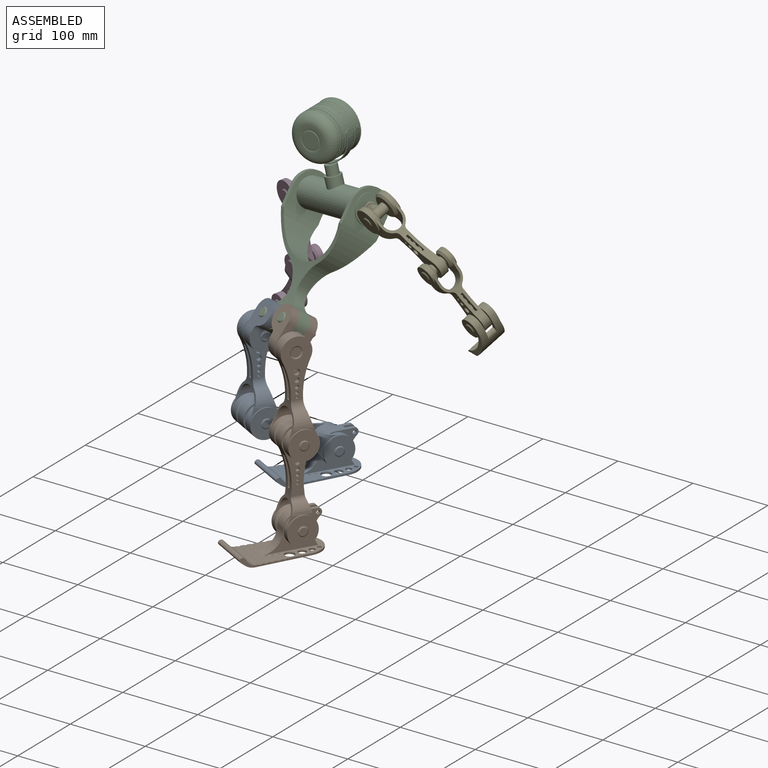
[diagram: assembled view]
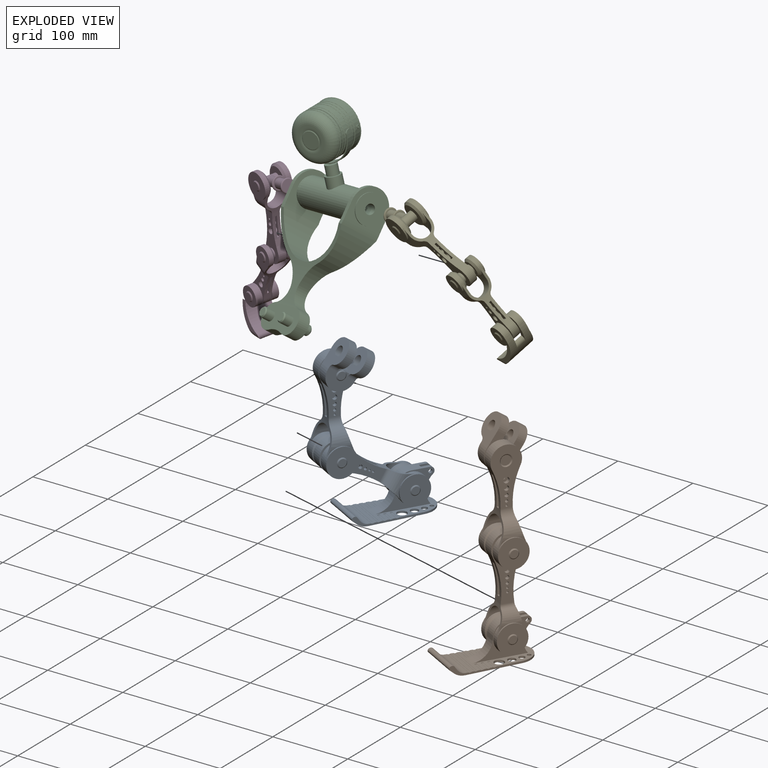
[diagram: exploded view]
GUIDED TOUR — MATED ASSEMBLY WITH SUBASSEMBLIES (Onshape document a24589fef76addebc5a67598, AutoMate assembly a24589fef76addebc5a67598_91730d0f8d46264968ac0a37_3807024f5753641d3b96459d_default)

This assembly has 21 component occurrences arranged in 5 top-level units: 0 individual components plus 5 subassemblies (S0, S1, S2, S3, S4). The tour has two levels: first the top level, where each subassembly is treated as one rigid unit; then each subassembly is toured internally in its own section (nesting deeper than one subassembly level is flattened into its subassembly's section).

Components are labeled P0..P20 across the whole record; subassembly units are labeled S0..S4. A mate is a constraint between two units; its type names the relative motion it leaves free:
  FASTENED — locks the two components together rigidly (no relative motion),
  REVOLUTE — leaves rotation about the listed axis free (a hinge).
Axis/direction vectors are unit vectors and 'through' points are millimeter coordinates, both in the assembly's world frame.

TOP-LEVEL MATES (between units; each subassembly's internal mates are listed in its own section)
  1. REVOLUTE "旋转 4": S4 <-> S2, axis (-0.904, 0.369, -0.215) through (-297.67, 82.02, 170.08) mm
  2. REVOLUTE "旋转 3": S2 <-> S3, axis (-0.904, 0.369, -0.215) through (-413.67, 129.31, 142.50) mm
  3. REVOLUTE "旋转 1": S2 <-> S0, axis (-0.422, -0.698, 0.578) through (-390.06, 10.44, 49.07) mm
  4. REVOLUTE "旋转 2": S2 <-> S1, axis (-0.422, -0.698, 0.578) through (-355.60, -3.60, 57.26) mm

TOP-LEVEL ASSEMBLY ORDER
  1. S2 — the base component [order heuristic]
  2. S0 [order heuristic]
  3. S1 [order heuristic]
  4. S3 [order heuristic]
  5. S4 [order heuristic]
Order-tag legend:
  [order heuristic] — this assembly is geometrically interlocked (no collision-free removal order exists), so components are listed in mate-graph order; insertion feasibility is not verified.

Of the 21 component occurrences, 2 carry the full construction recipe — the FeatureScript program that regenerates the part's solid from scratch; the rest are supplied as boundary geometry only. Each toured unit is shown spotlighted twice — assembled, then exploded with a leader line back to its socket (green = recipe-attached component, orange = geometry-only, blue = subassembly unit; the rest desaturated gray).
NOTE — this tour is split across 3 documents so each fits a 32k-token context. This is document 1: the component sections continue in the remaining 2 documents, each repeating the header above.
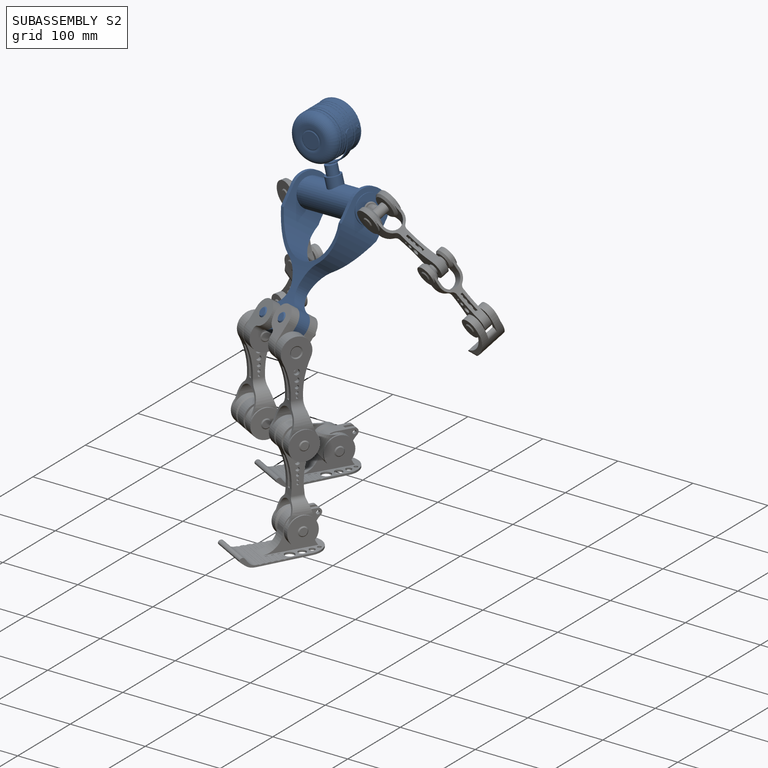
[diagram: subassembly S2 — assembled]
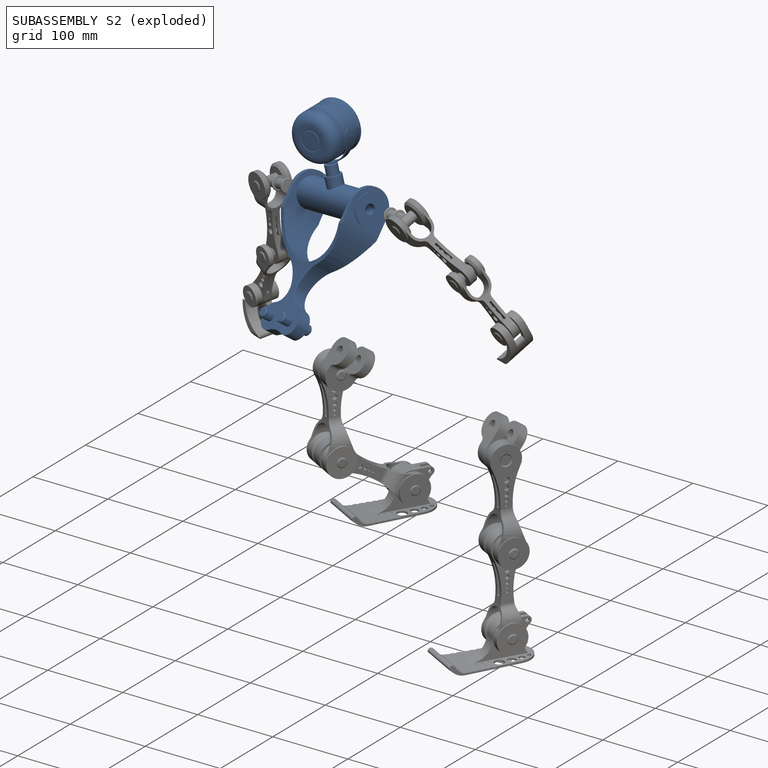
[diagram: subassembly S2 — exploded]
SUBASSEMBLY S2 — 5 components (P5, P11, P13, P16, P18), of which 0 recipe-attached; toured below.
Held by: REVOLUTE mate "旋转 4" to S4; REVOLUTE mate "旋转 3" to S3; REVOLUTE mate "旋转 1" to S0; REVOLUTE mate "旋转 2" to S1.
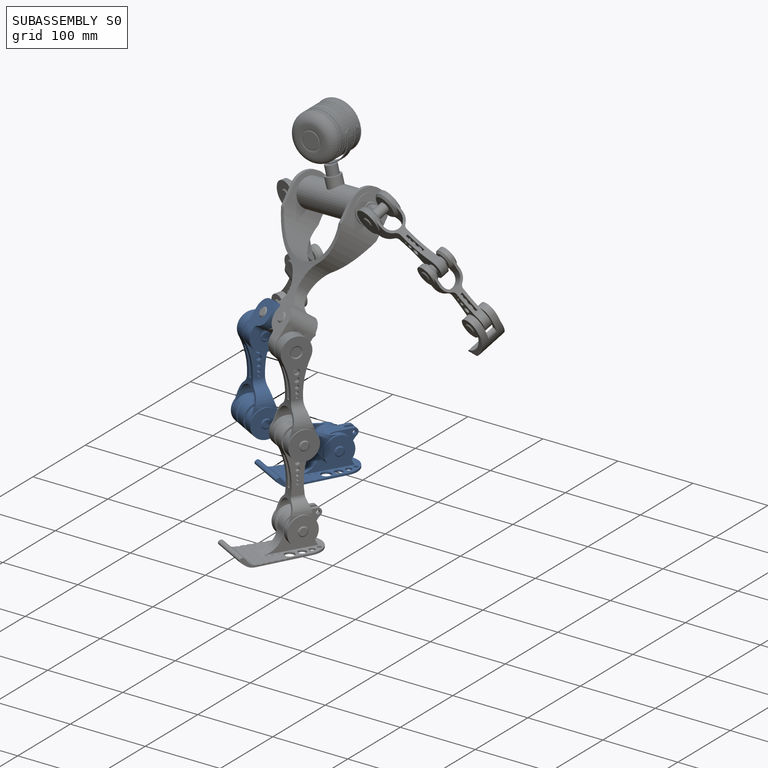
[diagram: subassembly S0 — assembled]
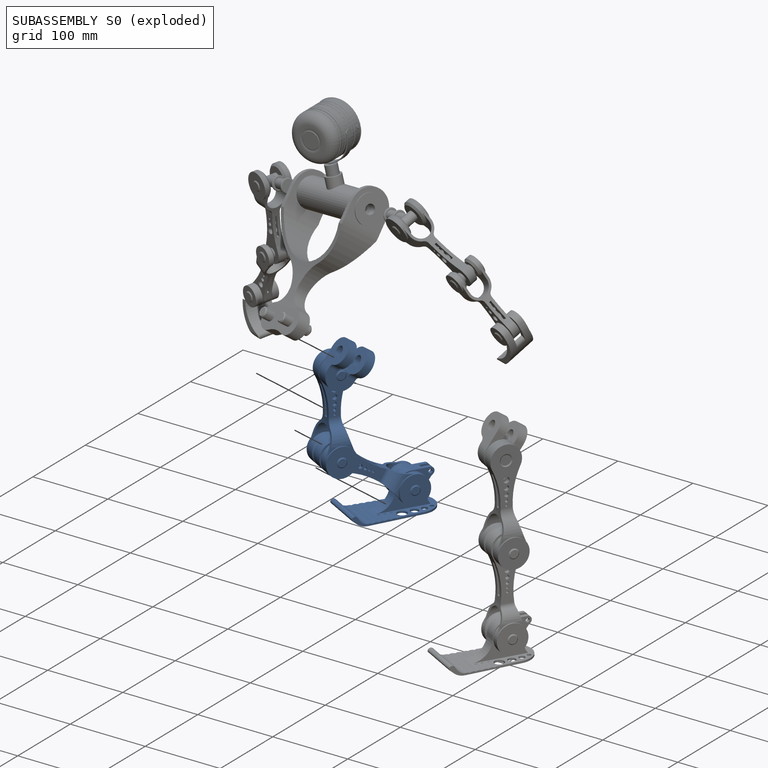
[diagram: subassembly S0 — exploded]
SUBASSEMBLY S0 — 4 components (P0, P1, P3, P9), of which 0 recipe-attached; toured below.
Held by: REVOLUTE mate "旋转 1" to S2.
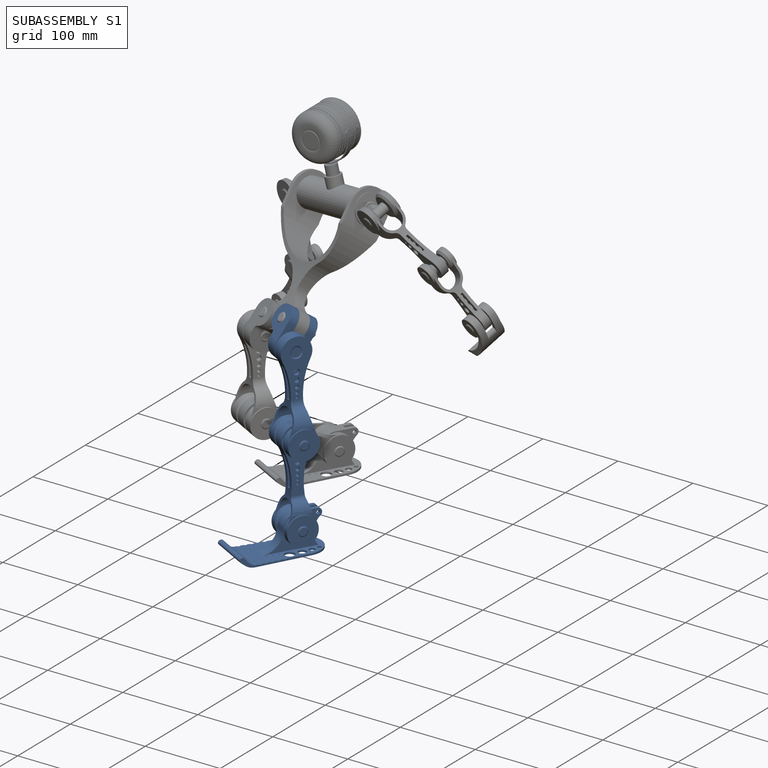
[diagram: subassembly S1 — assembled]
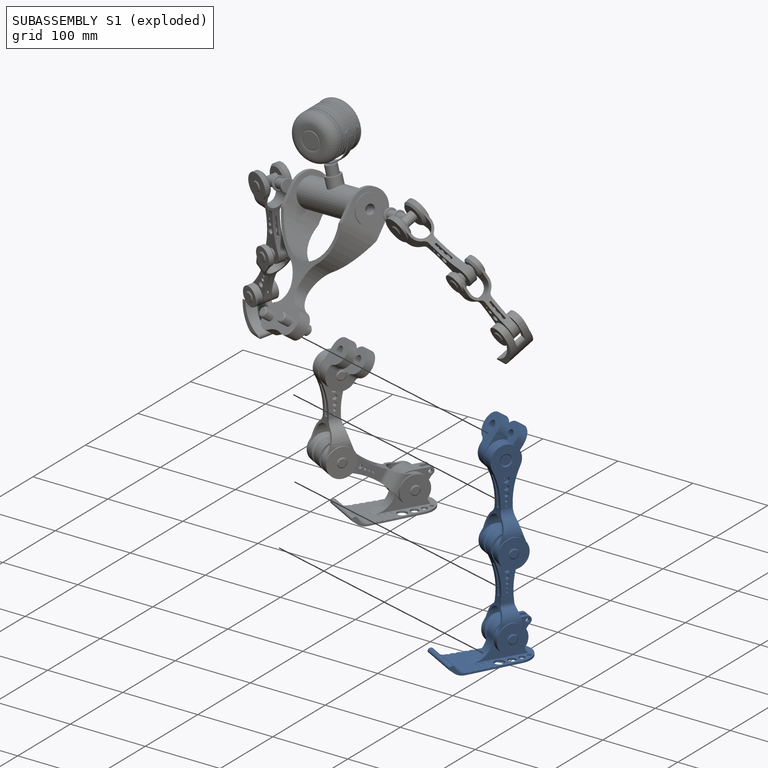
[diagram: subassembly S1 — exploded]
SUBASSEMBLY S1 — 4 components (P2, P4, P17, P20), of which 0 recipe-attached; toured below.
Held by: REVOLUTE mate "旋转 2" to S2.
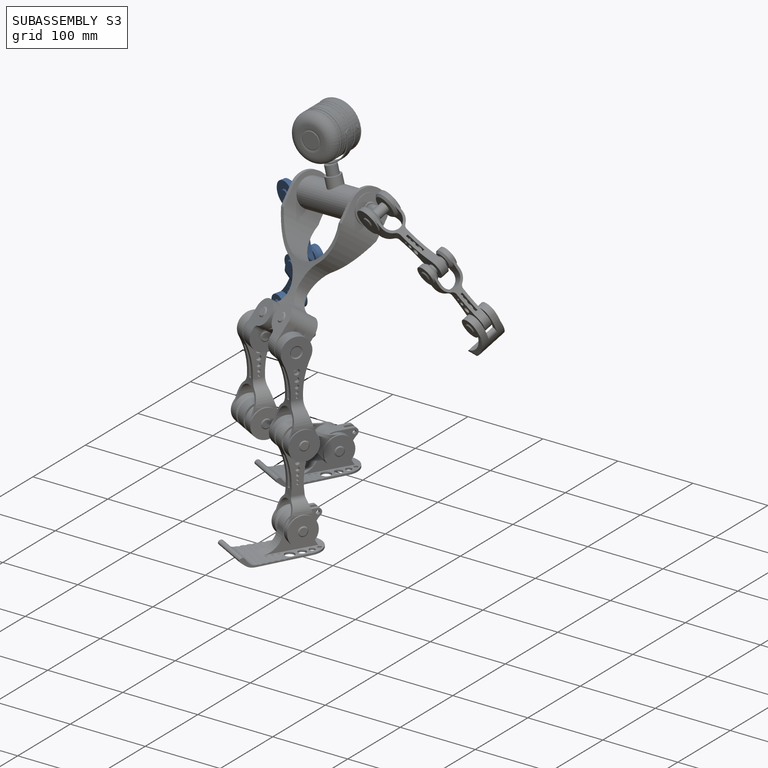
[diagram: subassembly S3 — assembled]
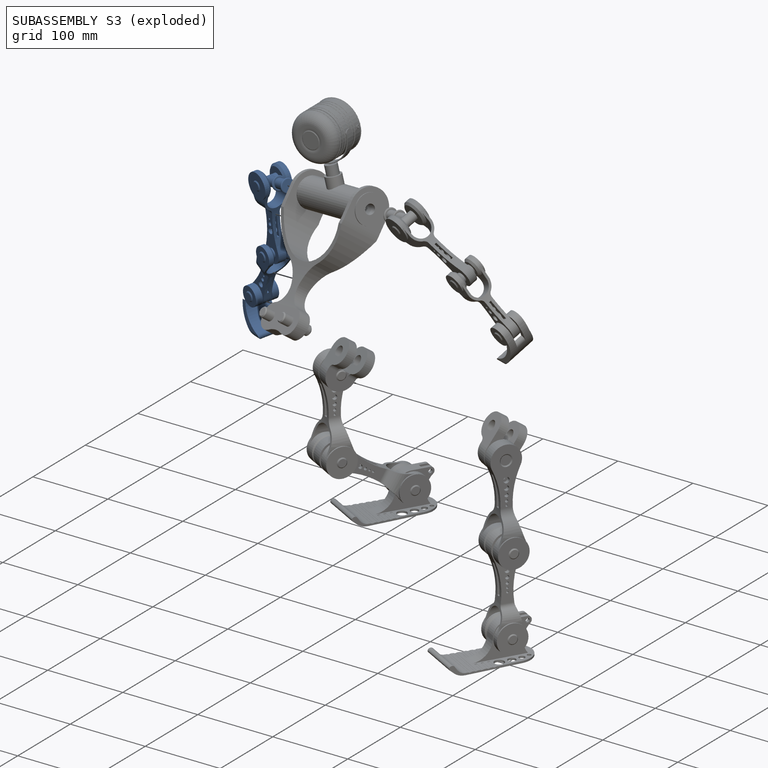
[diagram: subassembly S3 — exploded]
SUBASSEMBLY S3 — 4 components (P6, P7, P14, P15), of which 1 recipe-attached; toured below.
Held by: REVOLUTE mate "旋转 3" to S2.
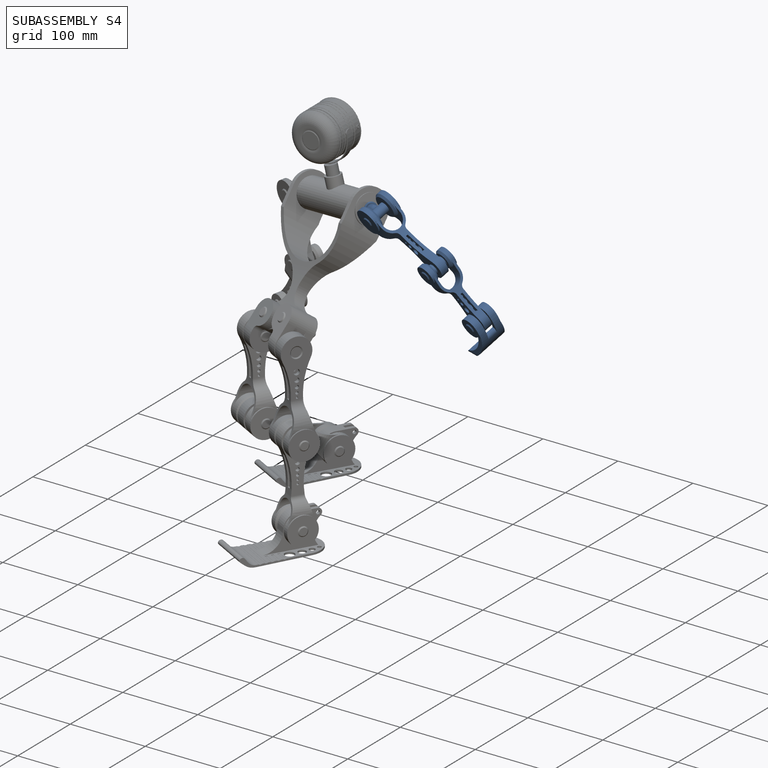
[diagram: subassembly S4 — assembled]
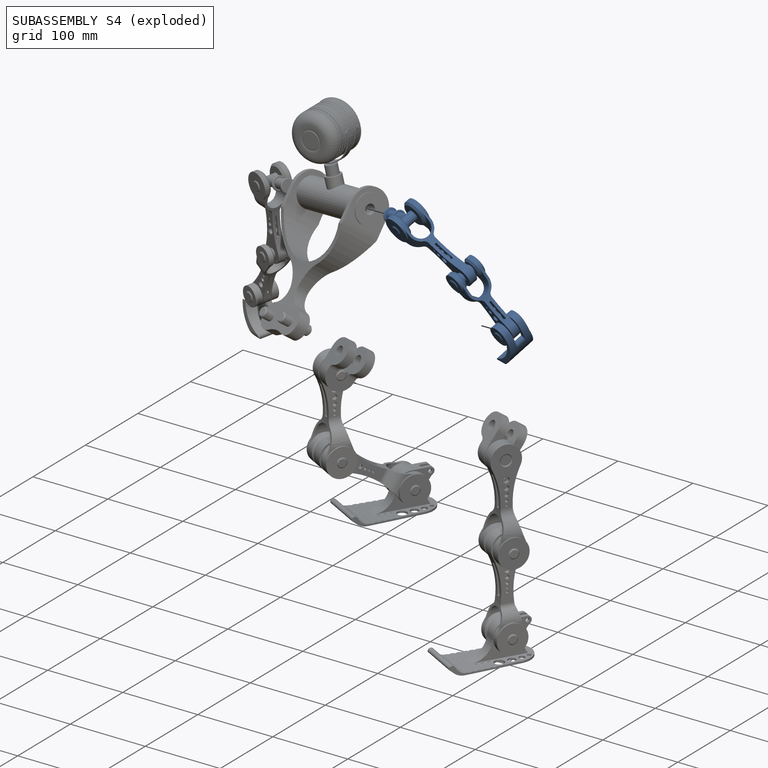
[diagram: subassembly S4 — exploded]
SUBASSEMBLY S4 — 4 components (P8, P10, P12, P19), of which 1 recipe-attached; toured below.
Held by: REVOLUTE mate "旋转 4" to S2.
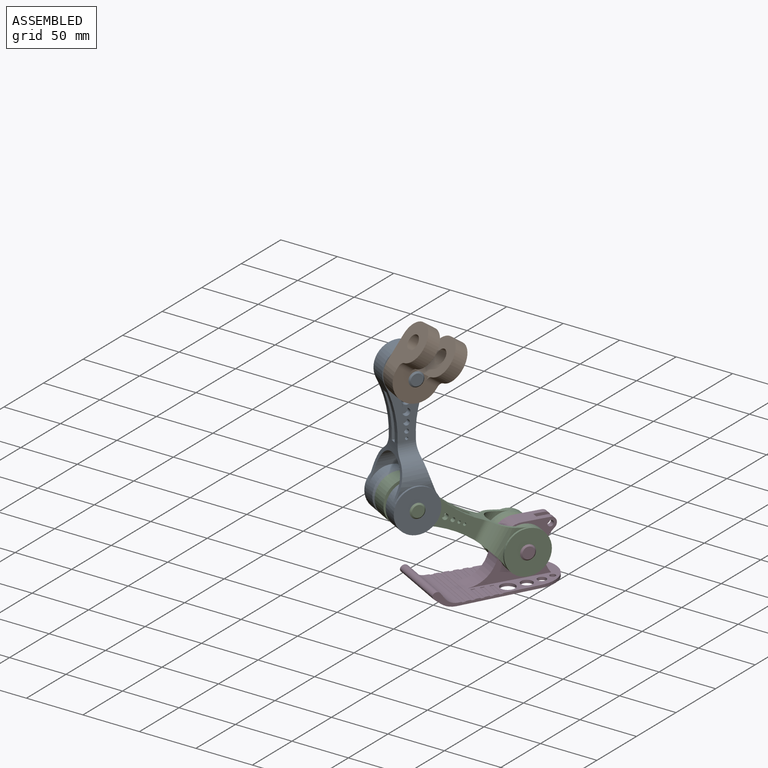
[diagram: subassembly S0 — assembled view]
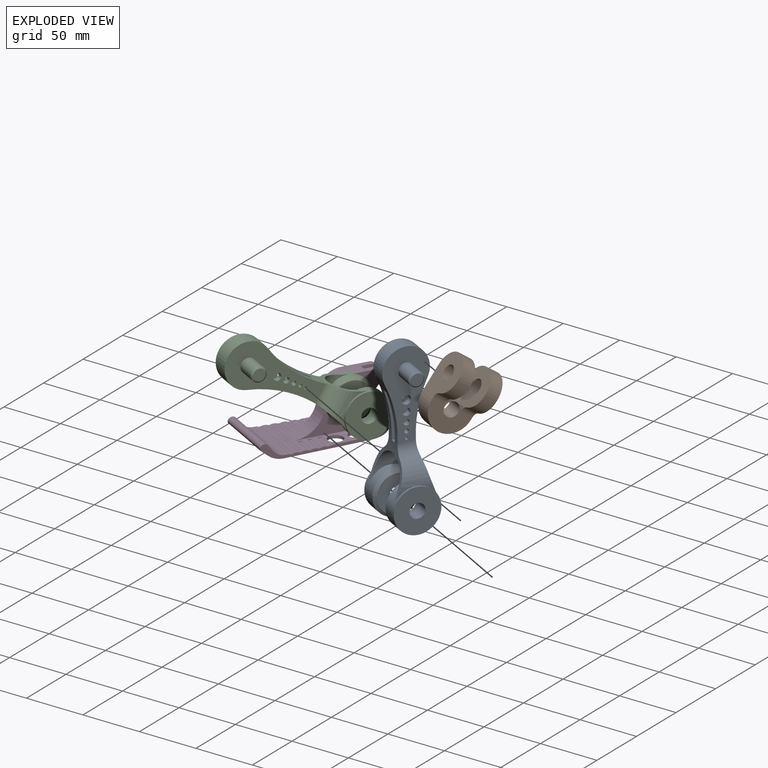
[diagram: subassembly S0 — exploded view]
SUBASSEMBLY S0 TOUR — 4 components, shown here in isolation at its own camera.

INTERNAL MATES
  1. REVOLUTE "旋转 2": P3 <-> P0, axis (0.865, -0.502, 0.025) through (-386.15, 10.53, -84.70) mm
  2. REVOLUTE "旋转 3": P1 <-> P0, axis (0.865, -0.502, 0.025) through (-388.25, 12.08, 19.41) mm
  3. REVOLUTE "旋转 1": P9 <-> P3, axis (0.865, -0.502, 0.025) through (-344.21, 90.29, -137.13) mm
  4. REVOLUTE "旋转 1": P9 <-> P3, axis (0.865, -0.502, 0.025) through (-344.21, 90.29, -137.13) mm
  5. REVOLUTE "旋转 3": P1 <-> P0, axis (0.865, -0.502, 0.025) through (-388.25, 12.08, 19.41) mm
  6. REVOLUTE "旋转 2": P3 <-> P0, axis (0.865, -0.502, 0.025) through (-386.15, 10.53, -84.70) mm

ASSEMBLY ORDER (within the subassembly)
  1. P0 — the base component [order heuristic]
  2. P1 [order heuristic]
  3. P3 [order heuristic]
  4. P9 [order heuristic]
Order-tag legend:
  [order heuristic] — this assembly is geometrically interlocked (no collision-free removal order exists), so components are listed in mate-graph order; insertion feasibility is not verified.
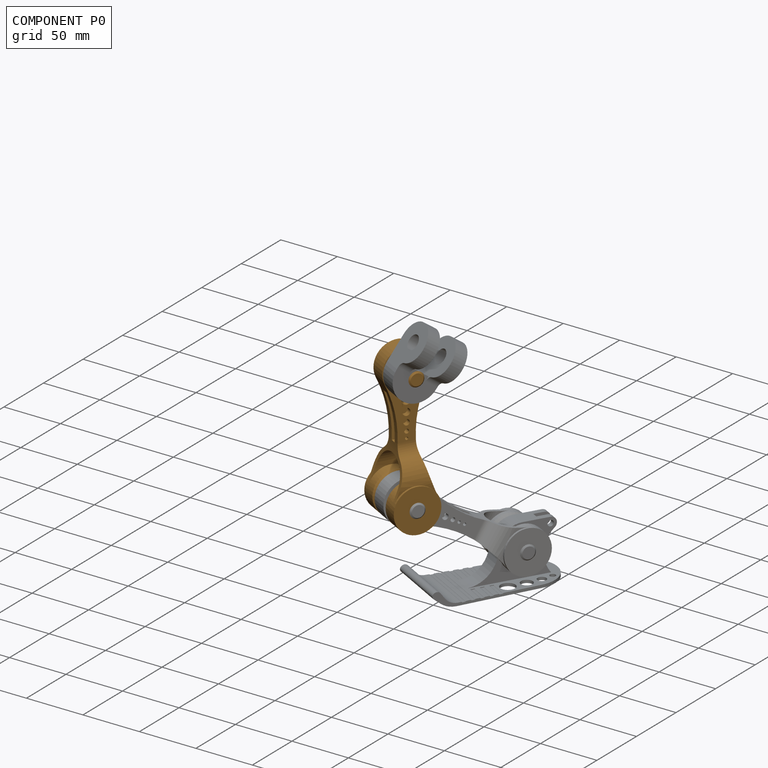
[diagram: component P0 — assembled]
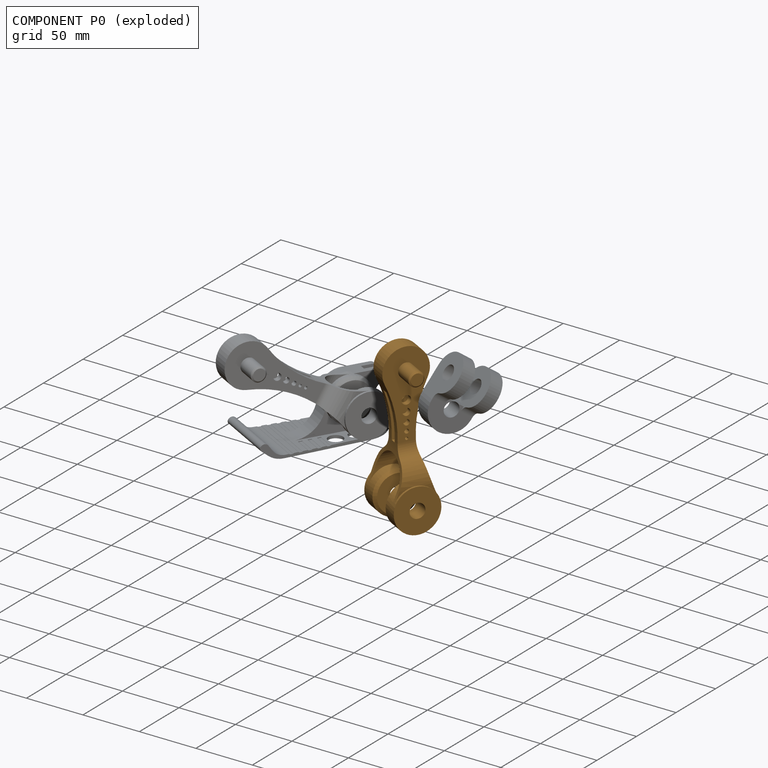
[diagram: component P0 — exploded]
COMPONENT P0 — geometry summary (no construction recipe available for this part):
  bounding box: 142.3 x 52.1 x 38.2 mm
  B-rep topology: 1 solid, 47 faces, 246 edges
  volume: 64594 mm^3 (23% of its bounding box)
  symmetry: mirror-symmetric across its y mid-plane
Held by: REVOLUTE mate "旋转 2" to P3; REVOLUTE mate "旋转 3" to P1; REVOLUTE mate "旋转 3" to P1; REVOLUTE mate "旋转 2" to P3.
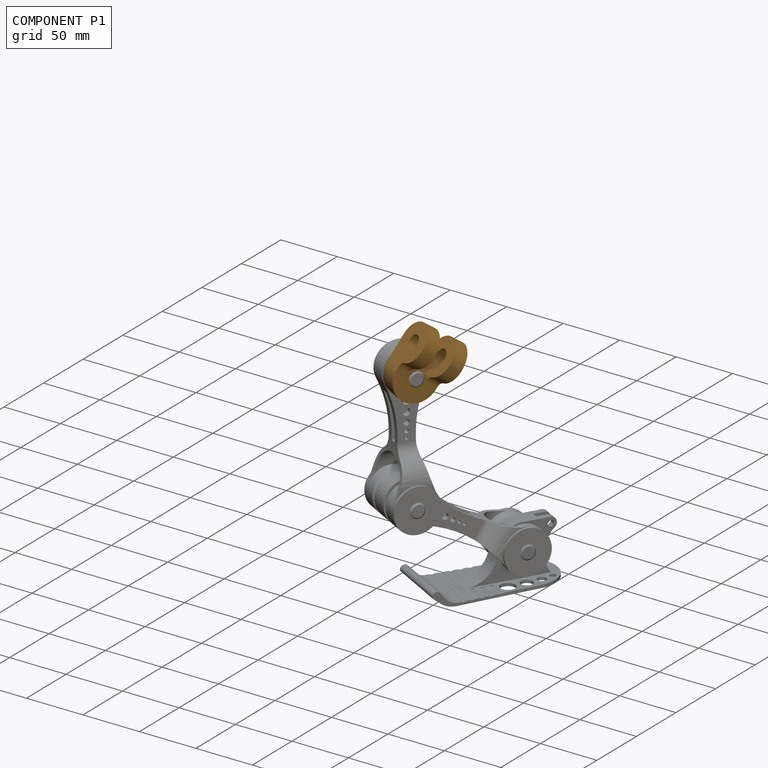
[diagram: component P1 — assembled]
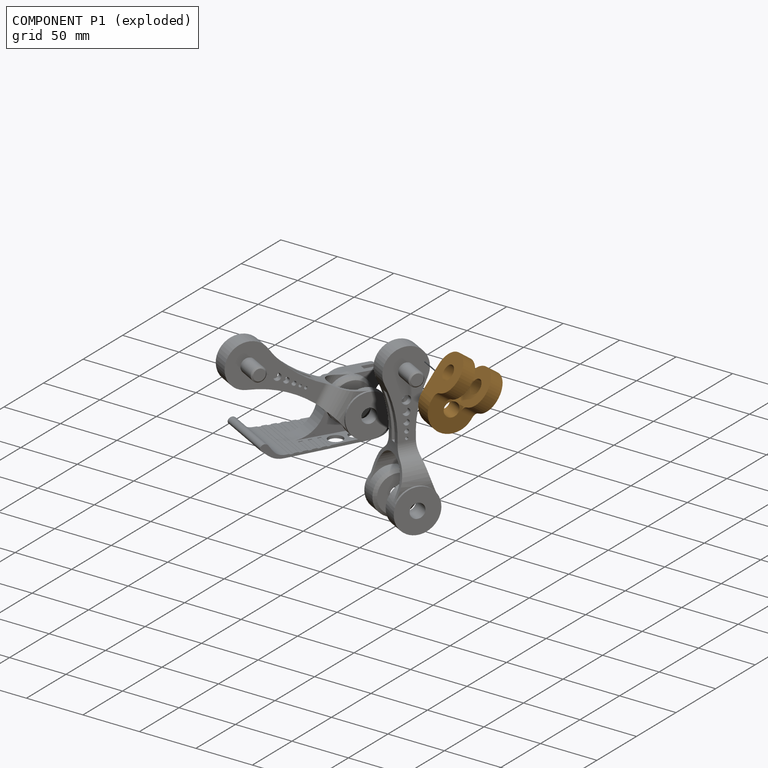
[diagram: component P1 — exploded]
COMPONENT P1 — geometry summary (no construction recipe available for this part):
  bounding box: 58.4 x 38.1 x 33.0 mm
  B-rep topology: 1 solid, 20 faces, 112 edges
  volume: 30275 mm^3 (41% of its bounding box)
  symmetry: mirror-symmetric across its y mid-plane
Held by: REVOLUTE mate "旋转 3" to P0; REVOLUTE mate "旋转 3" to P0.
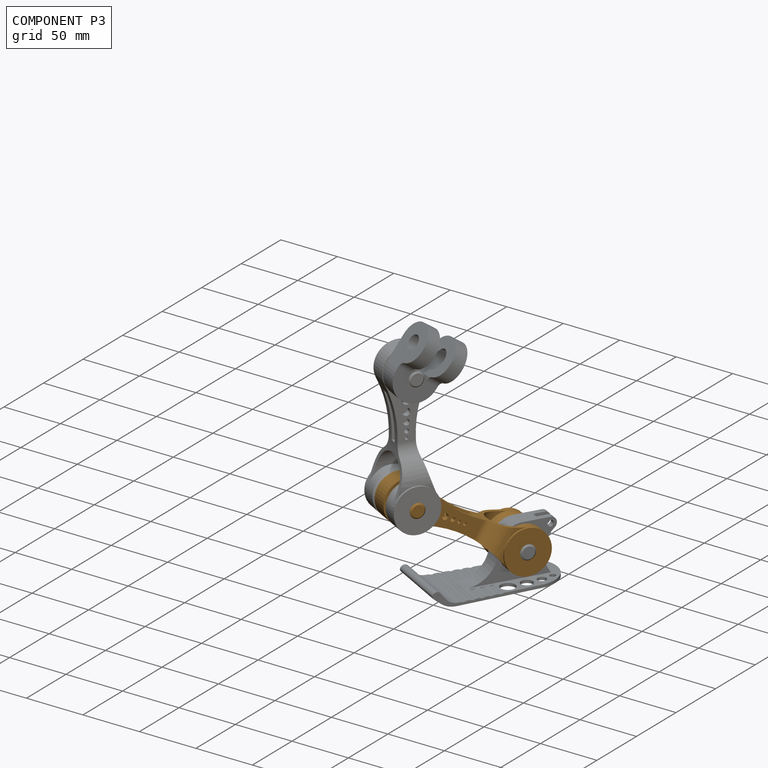
[diagram: component P3 — assembled]
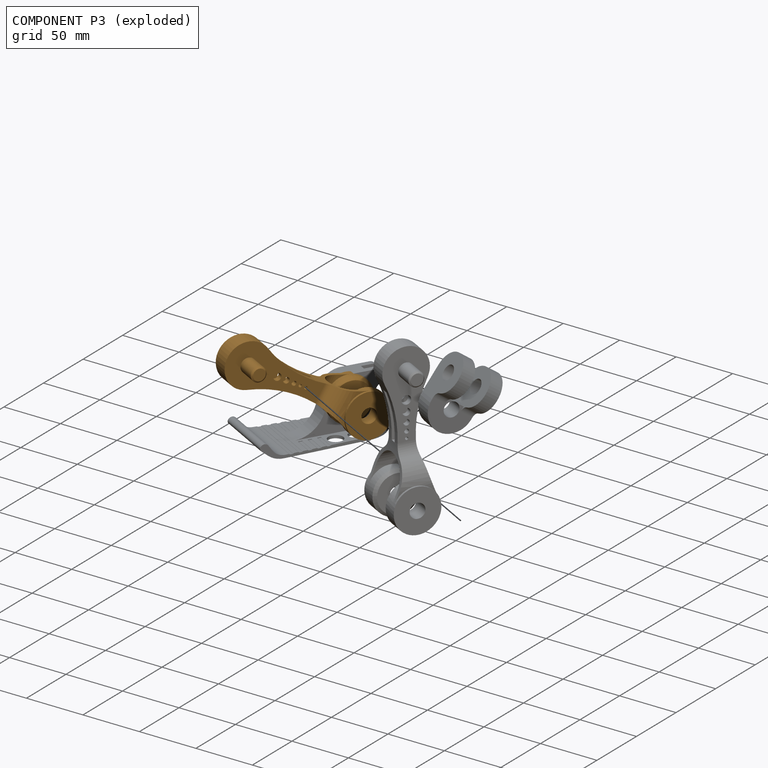
[diagram: component P3 — exploded]
COMPONENT P3 — geometry summary (no construction recipe available for this part):
  bounding box: 142.2 x 53.3 x 38.1 mm
  B-rep topology: 1 solid, 48 faces, 250 edges
  volume: 57555 mm^3 (20% of its bounding box)
  symmetry: 2-fold rotationally symmetric about the z axis; mirror-symmetric across its x mid-plane, y mid-plane
Held by: REVOLUTE mate "旋转 2" to P0; REVOLUTE mate "旋转 1" to P9; REVOLUTE mate "旋转 1" to P9; REVOLUTE mate "旋转 2" to P0.
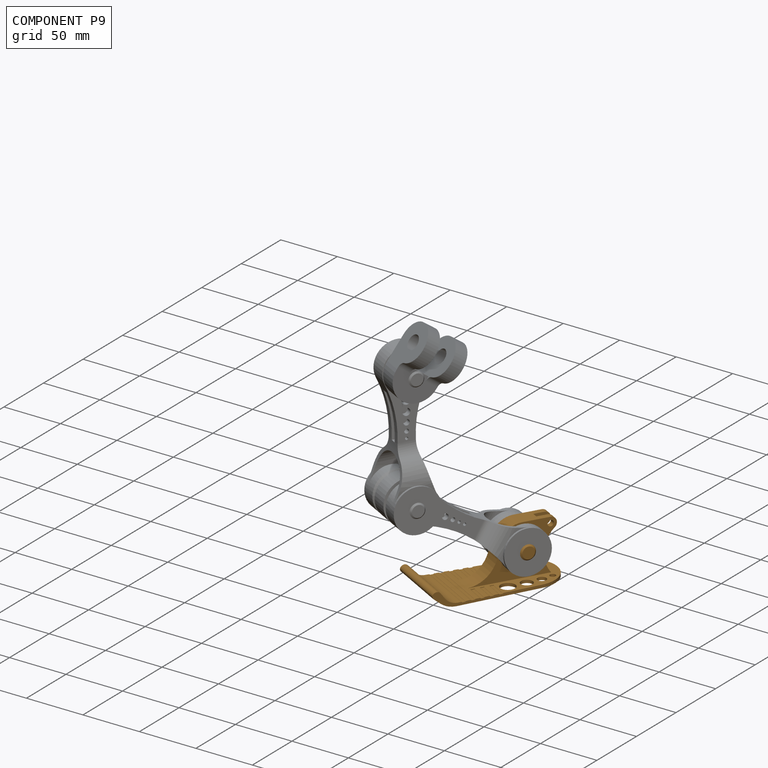
[diagram: component P9 — assembled]
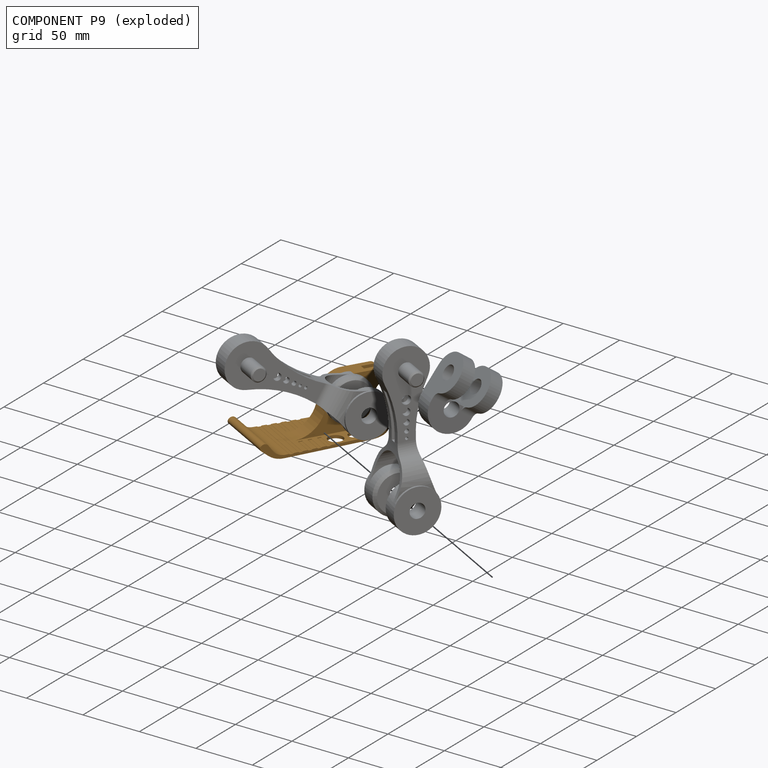
[diagram: component P9 — exploded]
COMPONENT P9 — geometry summary (no construction recipe available for this part):
  bounding box: 113.0 x 55.9 x 47.5 mm
  B-rep topology: 1 solid, 97 faces, 534 edges
  volume: 46412 mm^3 (15% of its bounding box)
  symmetry: mirror-symmetric across its x mid-plane
Held by: REVOLUTE mate "旋转 1" to P3; REVOLUTE mate "旋转 1" to P3.
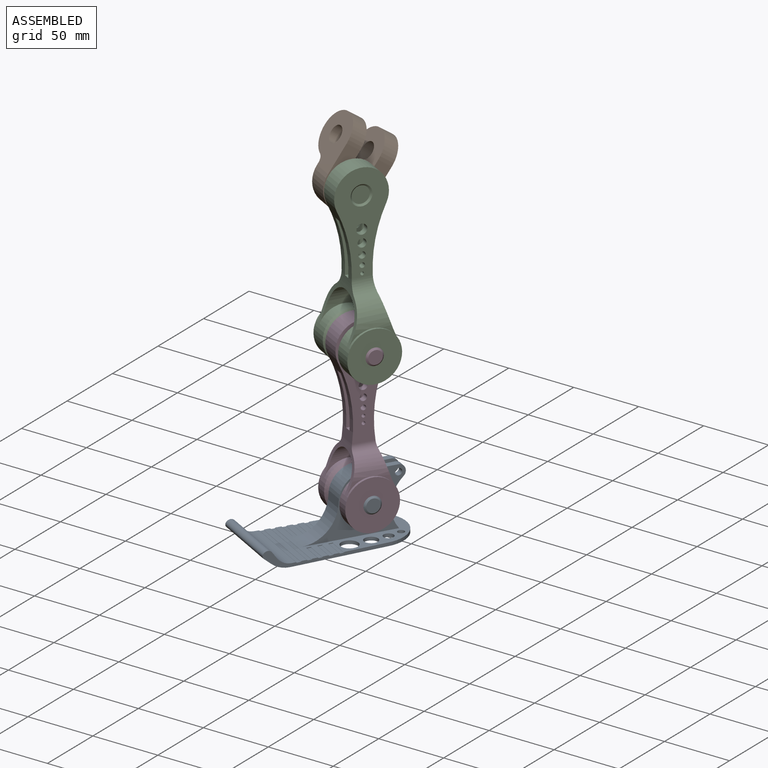
[diagram: subassembly S1 — assembled view]
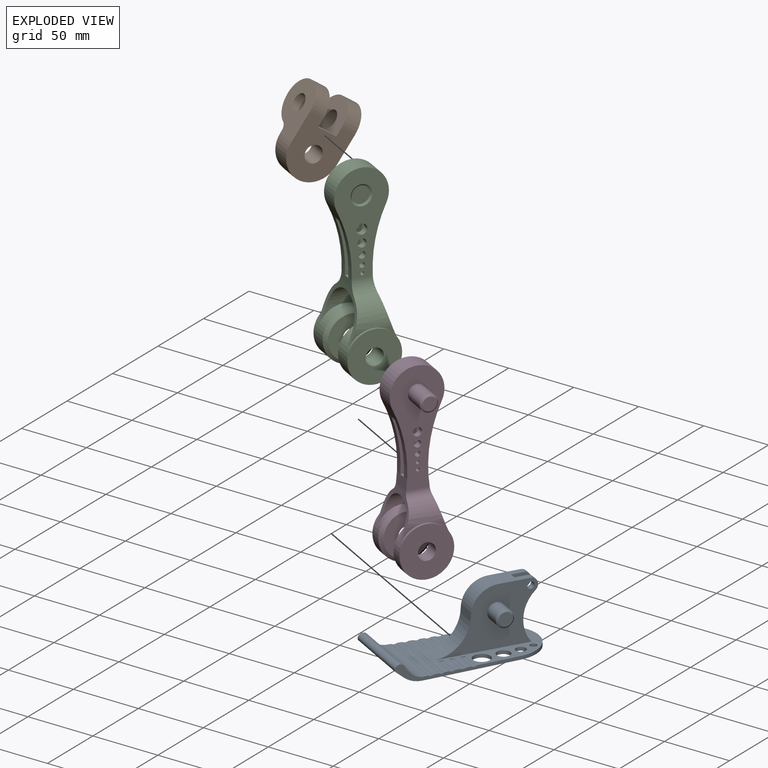
[diagram: subassembly S1 — exploded view]
SUBASSEMBLY S1 TOUR — 4 components, shown here in isolation at its own camera.

INTERNAL MATES
  1. REVOLUTE "旋转 2": P20 <-> P17, axis (-0.865, 0.502, -0.025) through (-351.69, -3.52, -76.51) mm
  2. REVOLUTE "旋转 3": P17 <-> P4, axis (-0.865, 0.502, -0.025) through (-353.80, -1.96, 27.60) mm
  3. REVOLUTE "旋转 1": P2 <-> P20, axis (-0.865, 0.502, -0.025) through (-345.20, -7.63, -180.49) mm
  4. REVOLUTE "旋转 2": P20 <-> P17, axis (-0.865, 0.502, -0.025) through (-351.69, -3.52, -76.51) mm
  5. REVOLUTE "旋转 1": P2 <-> P20, axis (-0.865, 0.502, -0.025) through (-345.20, -7.63, -180.49) mm
  6. REVOLUTE "旋转 3": P17 <-> P4, axis (-0.865, 0.502, -0.025) through (-353.80, -1.96, 27.60) mm

ASSEMBLY ORDER (within the subassembly)
  1. P17 — the base component [order heuristic]
  2. P4 [order heuristic]
  3. P20 [order heuristic]
  4. P2 [order heuristic]
Order-tag legend:
  [order heuristic] — this assembly is geometrically interlocked (no collision-free removal order exists), so components are listed in mate-graph order; insertion feasibility is not verified.
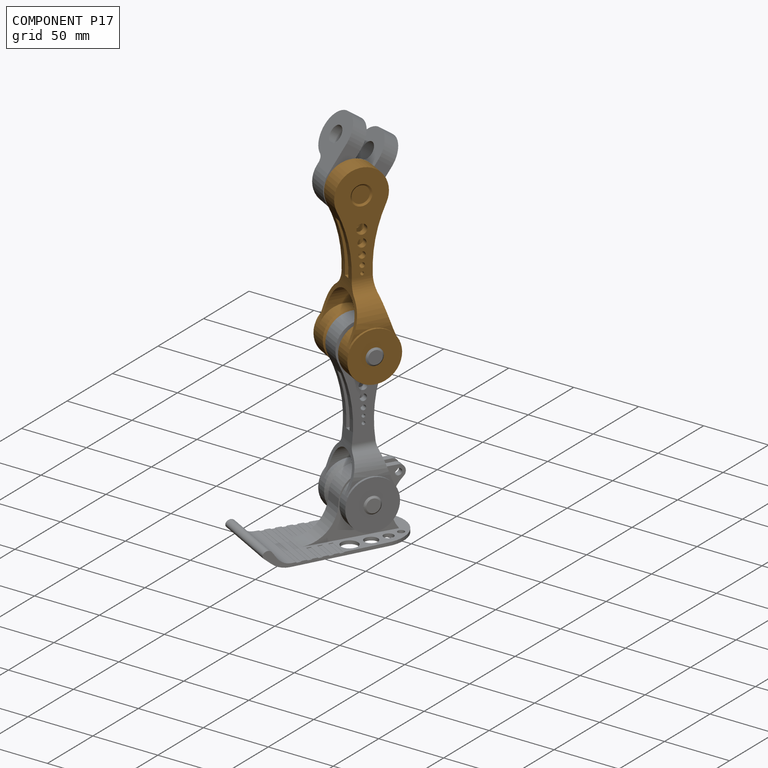
[diagram: component P17 — assembled]
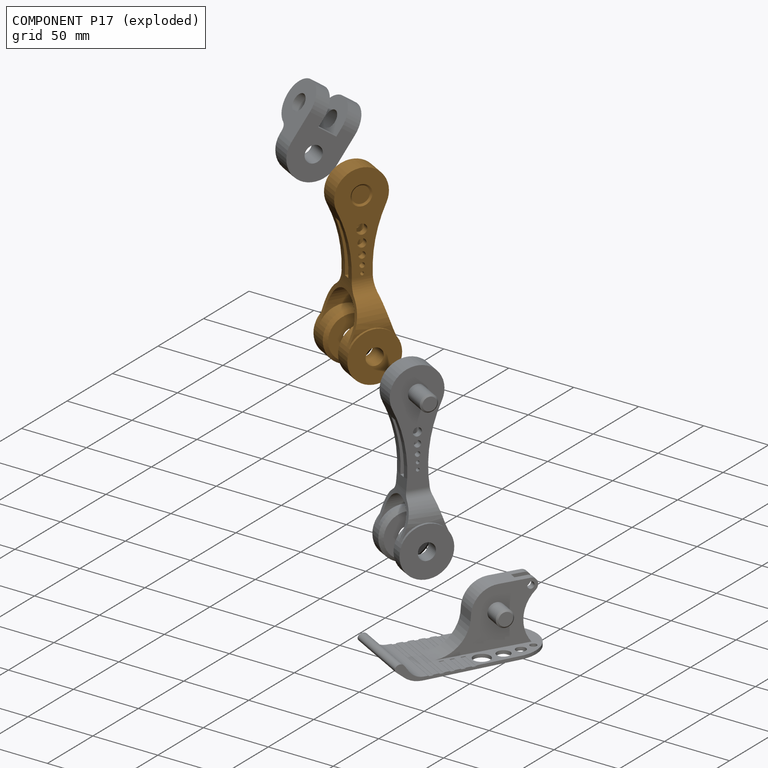
[diagram: component P17 — exploded]
COMPONENT P17 — geometry summary (no construction recipe available for this part):
  bounding box: 142.3 x 52.1 x 38.2 mm
  B-rep topology: 1 solid, 47 faces, 246 edges
  volume: 64594 mm^3 (23% of its bounding box)
  symmetry: mirror-symmetric across its y mid-plane
Held by: REVOLUTE mate "旋转 2" to P20; REVOLUTE mate "旋转 3" to P4; REVOLUTE mate "旋转 2" to P20; REVOLUTE mate "旋转 3" to P4.
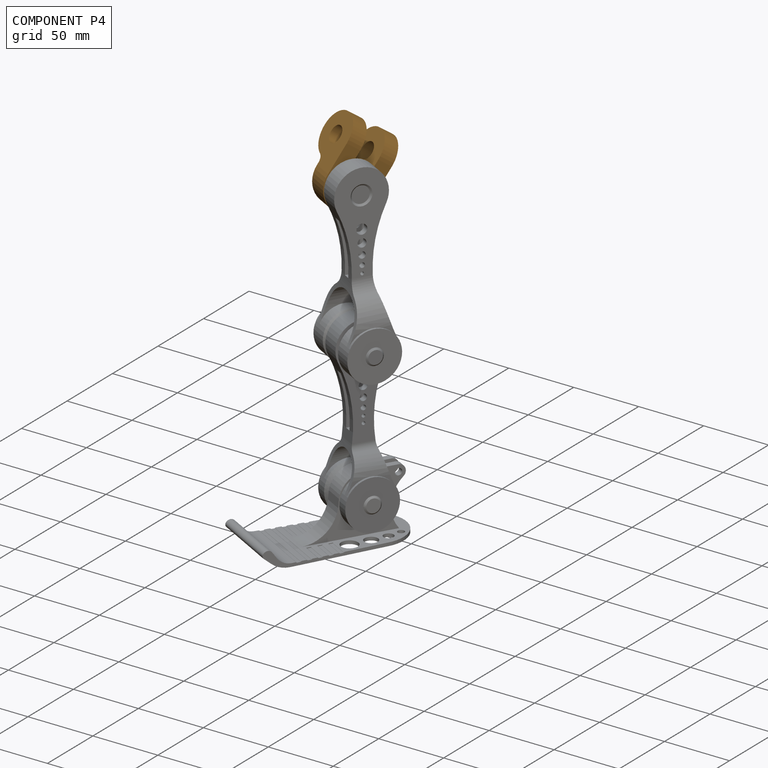
[diagram: component P4 — assembled]
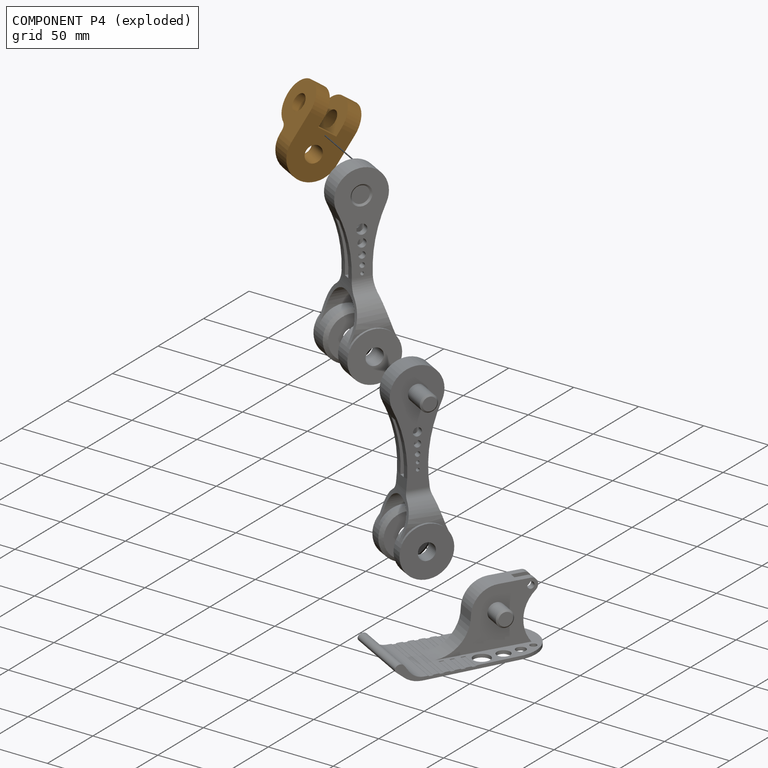
[diagram: component P4 — exploded]
COMPONENT P4 — geometry summary (no construction recipe available for this part):
  bounding box: 58.4 x 38.1 x 33.0 mm
  B-rep topology: 1 solid, 20 faces, 112 edges
  volume: 30275 mm^3 (41% of its bounding box)
  symmetry: mirror-symmetric across its y mid-plane
Held by: REVOLUTE mate "旋转 3" to P17; REVOLUTE mate "旋转 3" to P17.
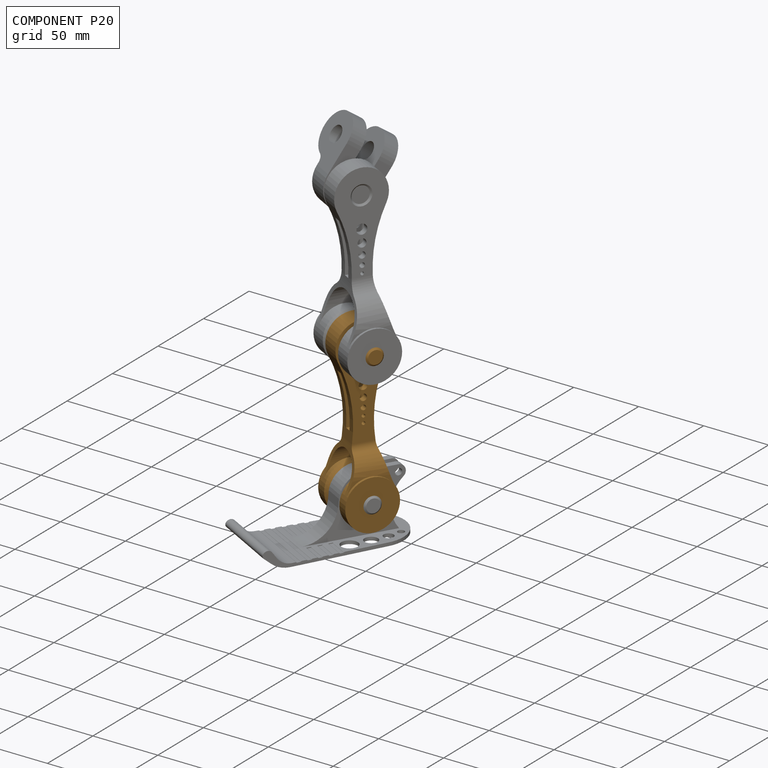
[diagram: component P20 — assembled]
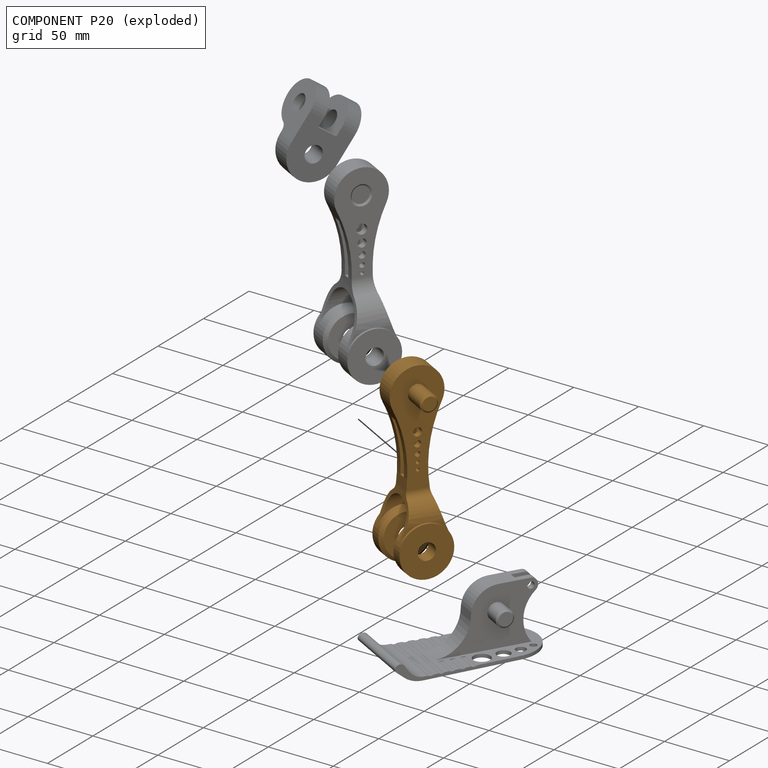
[diagram: component P20 — exploded]
COMPONENT P20 — geometry summary (no construction recipe available for this part):
  bounding box: 142.2 x 53.3 x 38.1 mm
  B-rep topology: 1 solid, 48 faces, 250 edges
  volume: 57555 mm^3 (20% of its bounding box)
  symmetry: 2-fold rotationally symmetric about the z axis; mirror-symmetric across its x mid-plane, y mid-plane
Held by: REVOLUTE mate "旋转 2" to P17; REVOLUTE mate "旋转 1" to P2; REVOLUTE mate "旋转 2" to P17; REVOLUTE mate "旋转 1" to P2.
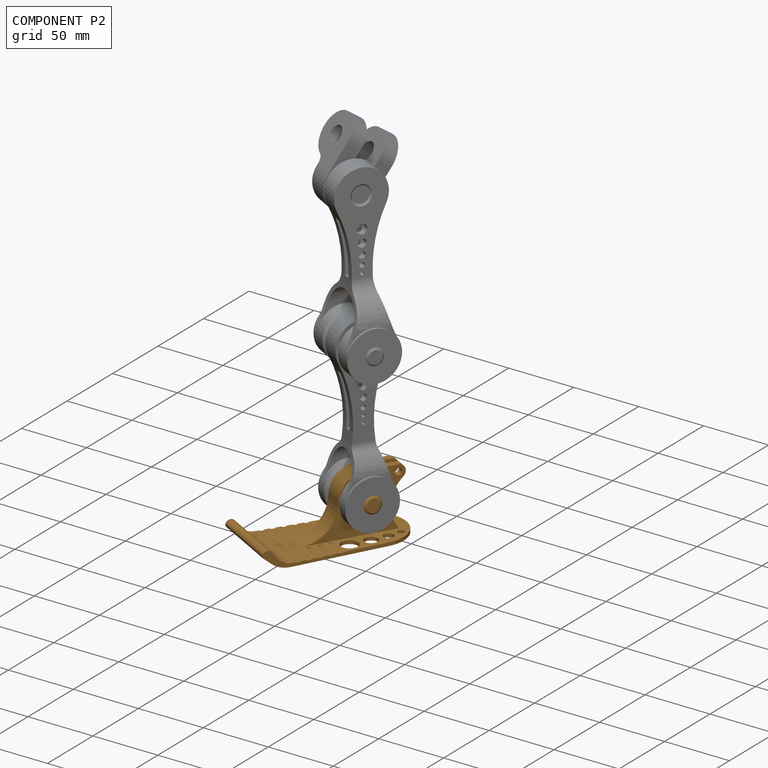
[diagram: component P2 — assembled]
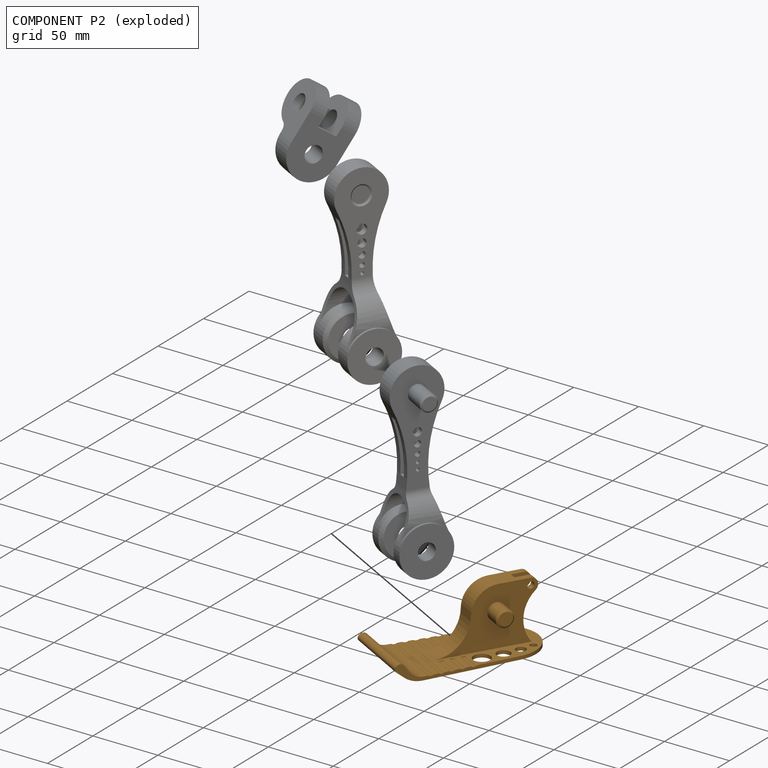
[diagram: component P2 — exploded]
COMPONENT P2 — geometry summary (no construction recipe available for this part):
  bounding box: 113.0 x 55.9 x 47.5 mm
  B-rep topology: 1 solid, 97 faces, 534 edges
  volume: 46412 mm^3 (15% of its bounding box)
  symmetry: mirror-symmetric across its x mid-plane
Held by: REVOLUTE mate "旋转 1" to P20; REVOLUTE mate "旋转 1" to P20.
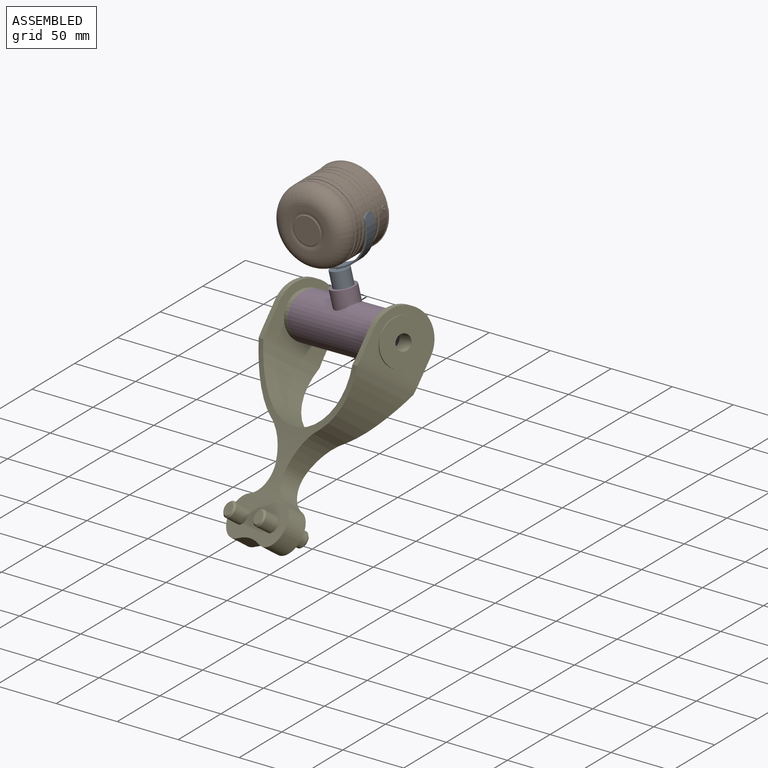
[diagram: subassembly S2 — assembled view]
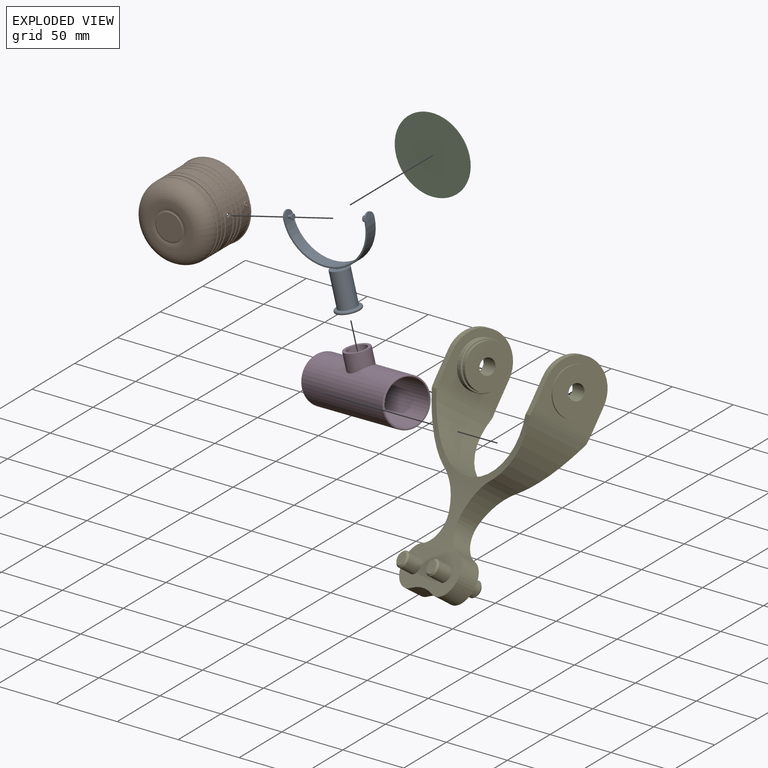
[diagram: subassembly S2 — exploded view]
SUBASSEMBLY S2 TOUR — 5 components, shown here in isolation at its own camera.

INTERNAL MATES
  1. REVOLUTE "旋转 2": P11 <-> P5, axis (-0.972, 0.000, -0.236) through (-345.37, 104.90, 240.47) mm
  2. REVOLUTE "旋转 1": P16 <-> P5, axis (0.236, 0.013, -0.972) through (-359.24, 105.74, 168.49) mm
  3. REVOLUTE "旋转 3": P18 <-> P16, axis (0.904, -0.369, 0.215) through (-402.76, 124.86, 145.09) mm
  4. FASTENED "紧固 1": P11 <-> P13, direction (0.000, 1.000, 0.000) through (-375.12, 129.68, 233.24) mm
  5. REVOLUTE "旋转 2": P11 <-> P5, axis (-0.972, 0.000, -0.236) through (-345.37, 104.90, 240.47) mm
  6. FASTENED "紧固 1": P11 <-> P13, direction (0.000, 1.000, 0.000) through (-375.12, 129.68, 233.24) mm
  7. REVOLUTE "旋转 1": P16 <-> P5, axis (0.236, 0.013, -0.972) through (-359.24, 105.74, 168.49) mm
  8. REVOLUTE "旋转 3": P18 <-> P16, axis (0.904, -0.369, 0.215) through (-402.76, 124.86, 145.09) mm

ASSEMBLY ORDER (within the subassembly)
  1. P5 — the base component [order heuristic]
  2. P11 — core [order heuristic]
  3. P16 — core [order heuristic]
  4. P18 — core [order heuristic]
  5. P13 [order verified]
Order-tag legend:
  [order verified] — this step's position reverses a verified removal order: the component was checked to insert without passing through the ones already placed.
  [order heuristic] — the first 4 components form the assembly's core: parts whose collision-free extraction could not be verified, listed in mate-graph order.
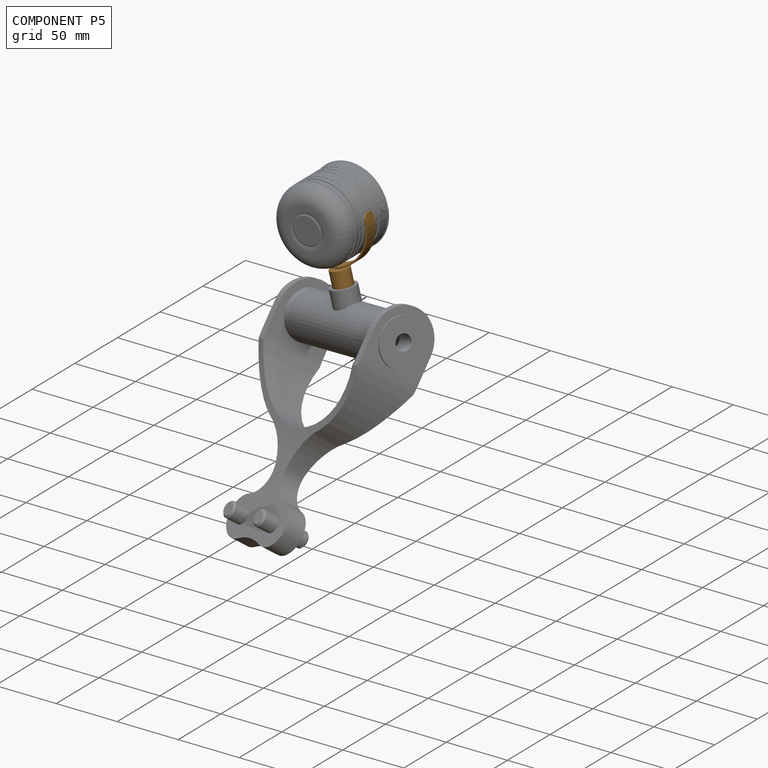
[diagram: component P5 — assembled]
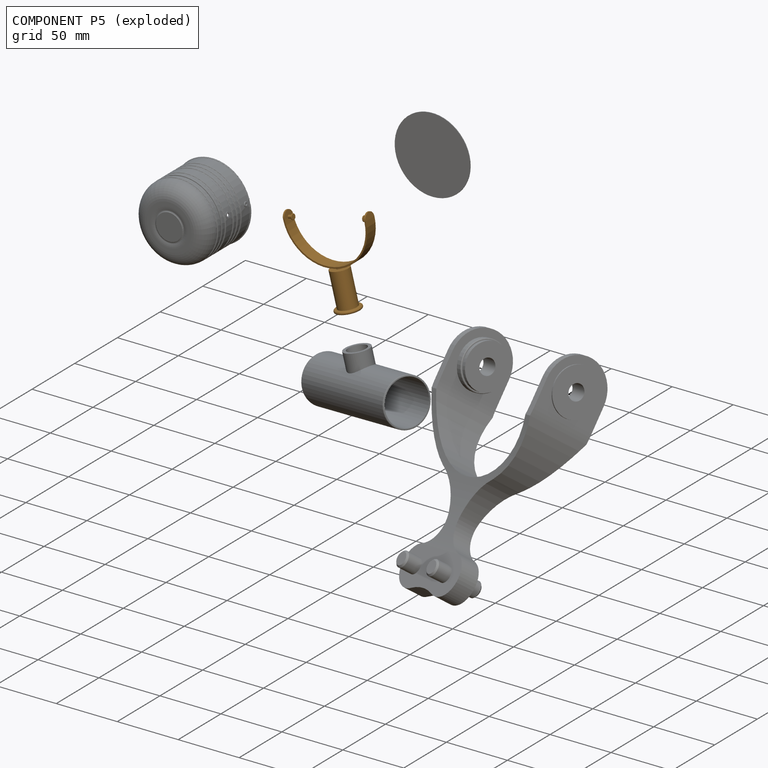
[diagram: component P5 — exploded]
COMPONENT P5 — geometry summary (no construction recipe available for this part):
  bounding box: 71.8 x 69.9 x 22.0 mm
  B-rep topology: 1 solid, 30 faces, 106 edges
  volume: 7453 mm^3 (7% of its bounding box)
  symmetry: 2-fold rotationally symmetric about the z axis; mirror-symmetric across its x mid-plane, y mid-plane
Held by: REVOLUTE mate "旋转 2" to P11; REVOLUTE mate "旋转 1" to P16; REVOLUTE mate "旋转 2" to P11; REVOLUTE mate "旋转 1" to P16.
